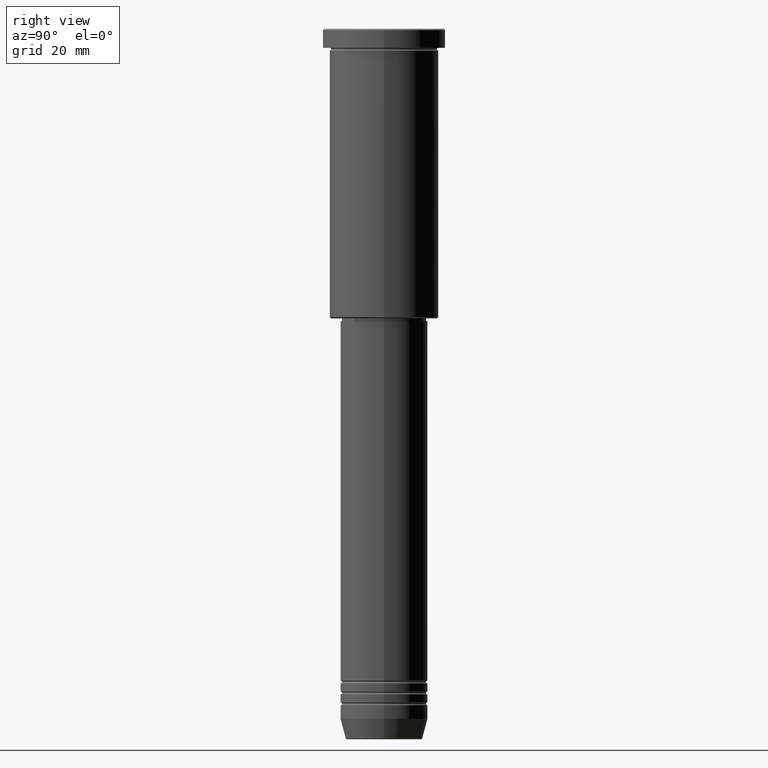
[diagram: clean part render]
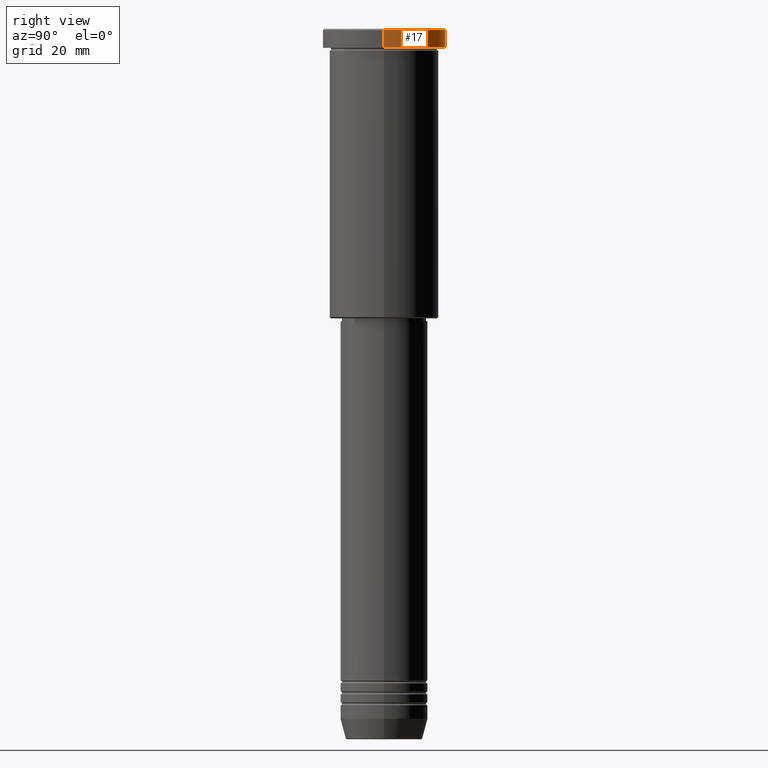
[diagram: same view with one face highlighted and labeled with its STEP entity id]
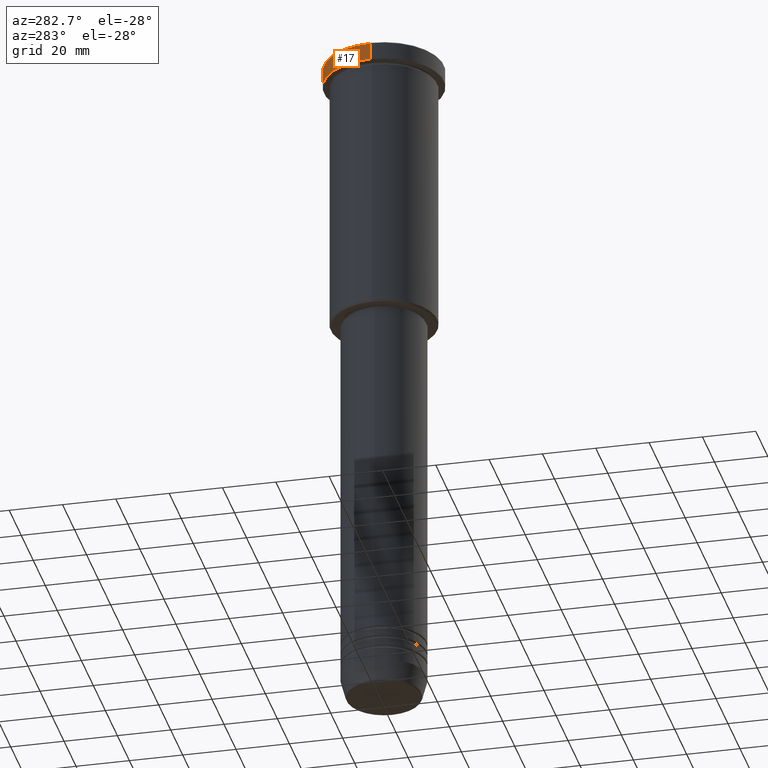
[diagram: same view with one face highlighted and labeled with its STEP entity id]
A machine part, right view. The second image highlights one B-rep face of the part: STEP entity #17.
A second angle (auxiliary view) of the same face is appended — the face is thin or edge-on in the first view.
In plain terms, the highlighted cylindrical surface (partial cylindrical patch) has radius 22.5 mm, axis along (-0, -0, 1).
Its self-contained STEP definition (entity closure, byte-faithful):
#6 = CYLINDRICAL_SURFACE ( 'NONE', #965, 22.50000000000000000 ) ;
#13 = AXIS2_PLACEMENT_3D ( 'NONE', #627, #172, #479 ) ;
#17 = ADVANCED_FACE ( 'NONE', ( #819 ), #6, .T. ) ;
#24 = CARTESIAN_POINT ( 'NONE',  ( 22.50000000000000000, 0.000000000000000000, 0.000000000000000000 ) ) ;
#45 = CARTESIAN_POINT ( 'NONE',  ( 0.000000000000000000, 0.000000000000000000, -0.5000000000001045830 ) ) ;
#94 = DIRECTION ( 'NONE',  ( 1.000000000000000000, 0.000000000000000000, 0.000000000000000000 ) ) ;
#140 = ORIENTED_EDGE ( 'NONE', *, *, #732, .T. ) ;
#172 = DIRECTION ( 'NONE',  ( -0.000000000000000000, -0.000000000000000000, 1.000000000000000000 ) ) ;
#189 = CARTESIAN_POINT ( 'NONE',  ( 0.000000000000000000, 0.000000000000000000, 0.000000000000000000 ) ) ;
#200 = VECTOR ( 'NONE', #851, 1000.000000000000000 ) ;
#220 = AXIS2_PLACEMENT_3D ( 'NONE', #45, #403, #780 ) ;
#264 = CIRCLE ( 'NONE', #13, 22.50000000000000000 ) ;
#301 = CARTESIAN_POINT ( 'NONE',  ( -22.50000000000000000, 2.755455298081544778E-15, -0.5000000000001045830 ) ) ;
#313 = CARTESIAN_POINT ( 'NONE',  ( -22.50000000000000000, 2.755455298081544778E-15, 0.000000000000000000 ) ) ;
#339 = ORIENTED_EDGE ( 'NONE', *, *, #568, .F. ) ;
#356 = CARTESIAN_POINT ( 'NONE',  ( -22.50000000000000000, 2.755455298081544778E-15, -6.999999999999995559 ) ) ;
#403 = DIRECTION ( 'NONE',  ( 0.000000000000000000, 0.000000000000000000, -1.000000000000000000 ) ) ;
#408 = ORIENTED_EDGE ( 'NONE', *, *, #559, .T. ) ;
#479 = DIRECTION ( 'NONE',  ( 1.000000000000000000, 0.000000000000000000, 0.000000000000000000 ) ) ;
#559 = EDGE_CURVE ( 'NONE', #1088, #1162, #264, .T. ) ;
#568 = EDGE_CURVE ( 'NONE', #1088, #727, #1040, .T. ) ;
#627 = CARTESIAN_POINT ( 'NONE',  ( 0.000000000000000000, 0.000000000000000000, -6.999999999999995559 ) ) ;
#653 = EDGE_CURVE ( 'NONE', #1162, #1001, #1134, .T. ) ;
#697 = ORIENTED_EDGE ( 'NONE', *, *, #653, .T. ) ;
#727 = VERTEX_POINT ( 'NONE', #790 ) ;
#732 = EDGE_CURVE ( 'NONE', #1001, #727, #988, .T. ) ;
#780 = DIRECTION ( 'NONE',  ( 1.000000000000000000, 0.000000000000000000, 0.000000000000000000 ) ) ;
#790 = CARTESIAN_POINT ( 'NONE',  ( 22.50000000000000000, 0.000000000000000000, -0.5000000000001045830 ) ) ;
#817 = EDGE_LOOP ( 'NONE', ( #408, #697, #140, #339 ) ) ;
#819 = FACE_OUTER_BOUND ( 'NONE', #817, .T. ) ;
#829 = VECTOR ( 'NONE', #928, 1000.000000000000000 ) ;
#851 = DIRECTION ( 'NONE',  ( -0.000000000000000000, -0.000000000000000000, 1.000000000000000000 ) ) ;
#928 = DIRECTION ( 'NONE',  ( -0.000000000000000000, -0.000000000000000000, 1.000000000000000000 ) ) ;
#955 = CARTESIAN_POINT ( 'NONE',  ( 22.50000000000000000, 0.000000000000000000, -6.999999999999995559 ) ) ;
#965 = AXIS2_PLACEMENT_3D ( 'NONE', #189, #1010, #94 ) ;
#988 = CIRCLE ( 'NONE', #220, 22.50000000000000000 ) ;
#1001 = VERTEX_POINT ( 'NONE', #301 ) ;
#1010 = DIRECTION ( 'NONE',  ( -0.000000000000000000, -0.000000000000000000, 1.000000000000000000 ) ) ;
#1040 = LINE ( 'NONE', #24, #200 ) ;
#1088 = VERTEX_POINT ( 'NONE', #955 ) ;
#1134 = LINE ( 'NONE', #313, #829 ) ;
#1162 = VERTEX_POINT ( 'NONE', #356 ) ;